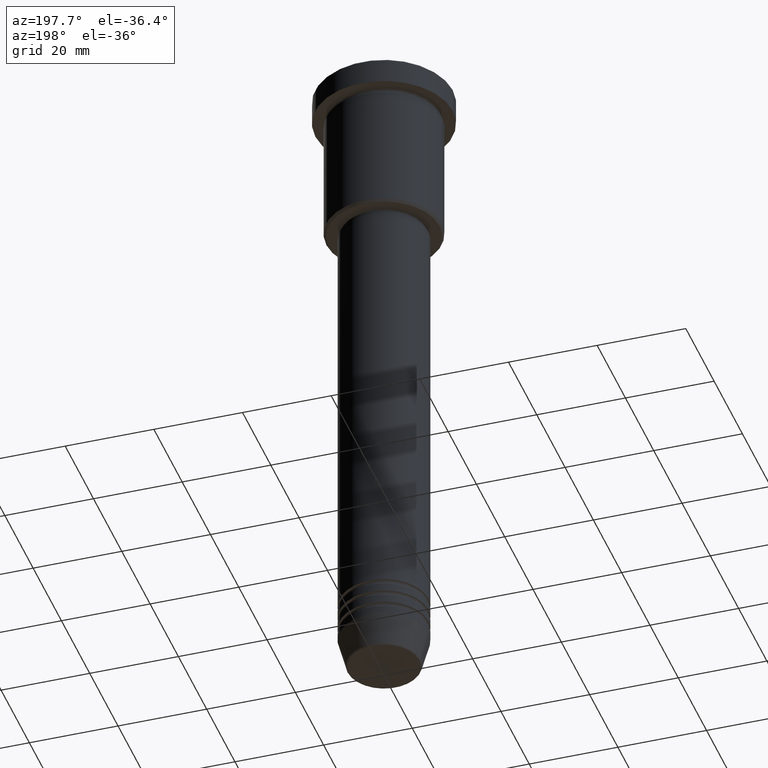
[diagram: clean part render]
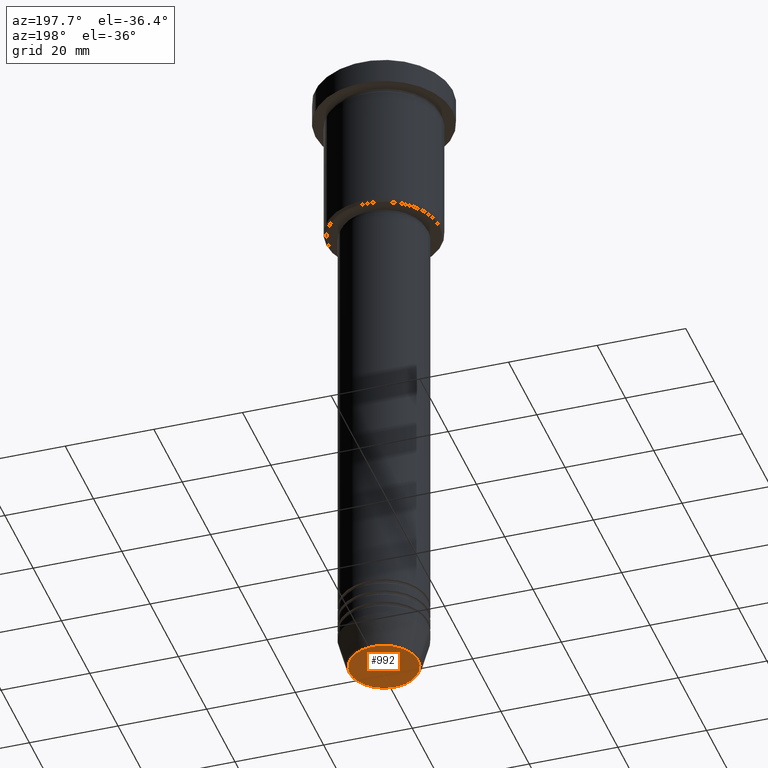
[diagram: same view with one face highlighted and labeled with its STEP entity id]
A machine part, auxiliary view. The second image highlights one B-rep face of the part: STEP entity #992.
In plain terms, the highlighted planar face has unit normal (0, -0, 1).
Its self-contained STEP definition (entity closure, byte-faithful):
#22 = DIRECTION ( 'NONE',  ( 1.000000000000000000, 0.000000000000000000, 0.000000000000000000 ) ) ;
#104 = CARTESIAN_POINT ( 'NONE',  ( 0.000000000000000000, 0.000000000000000000, -151.0000000000000284 ) ) ;
#233 = DIRECTION ( 'NONE',  ( 1.000000000000000000, 0.000000000000000000, 0.000000000000000000 ) ) ;
#285 = CIRCLE ( 'NONE', #961, 7.740692158992658278 ) ;
#315 = CARTESIAN_POINT ( 'NONE',  ( 0.000000000000000000, 0.000000000000000000, -151.0000000000000284 ) ) ;
#377 = EDGE_CURVE ( 'NONE', #508, #960, #285, .T. ) ;
#383 = AXIS2_PLACEMENT_3D ( 'NONE', #616, #909, #440 ) ;
#440 = DIRECTION ( 'NONE',  ( 1.000000000000000000, 0.000000000000000000, 0.000000000000000000 ) ) ;
#454 = EDGE_LOOP ( 'NONE', ( #1043, #1178 ) ) ;
#471 = DIRECTION ( 'NONE',  ( 0.000000000000000000, -0.000000000000000000, 1.000000000000000000 ) ) ;
#508 = VERTEX_POINT ( 'NONE', #1118 ) ;
#559 = AXIS2_PLACEMENT_3D ( 'NONE', #104, #471, #22 ) ;
#574 = FACE_OUTER_BOUND ( 'NONE', #454, .T. ) ;
#616 = CARTESIAN_POINT ( 'NONE',  ( 0.000000000000000000, 0.000000000000000000, -151.0000000000000284 ) ) ;
#693 = CIRCLE ( 'NONE', #383, 7.740692158992658278 ) ;
#861 = CARTESIAN_POINT ( 'NONE',  ( -7.740692158992658278, 9.775343368540041107E-16, -151.0000000000000284 ) ) ;
#887 = DIRECTION ( 'NONE',  ( 0.000000000000000000, 0.000000000000000000, -1.000000000000000000 ) ) ;
#909 = DIRECTION ( 'NONE',  ( 0.000000000000000000, 0.000000000000000000, -1.000000000000000000 ) ) ;
#944 = PLANE ( 'NONE',  #559 ) ;
#960 = VERTEX_POINT ( 'NONE', #861 ) ;
#961 = AXIS2_PLACEMENT_3D ( 'NONE', #315, #887, #233 ) ;
#992 = ADVANCED_FACE ( 'NONE', ( #574 ), #944, .F. ) ;
#1043 = ORIENTED_EDGE ( 'NONE', *, *, #377, .T. ) ;
#1100 = EDGE_CURVE ( 'NONE', #960, #508, #693, .T. ) ;
#1118 = CARTESIAN_POINT ( 'NONE',  ( 7.740692158992658278, 0.000000000000000000, -151.0000000000000284 ) ) ;
#1178 = ORIENTED_EDGE ( 'NONE', *, *, #1100, .T. ) ;